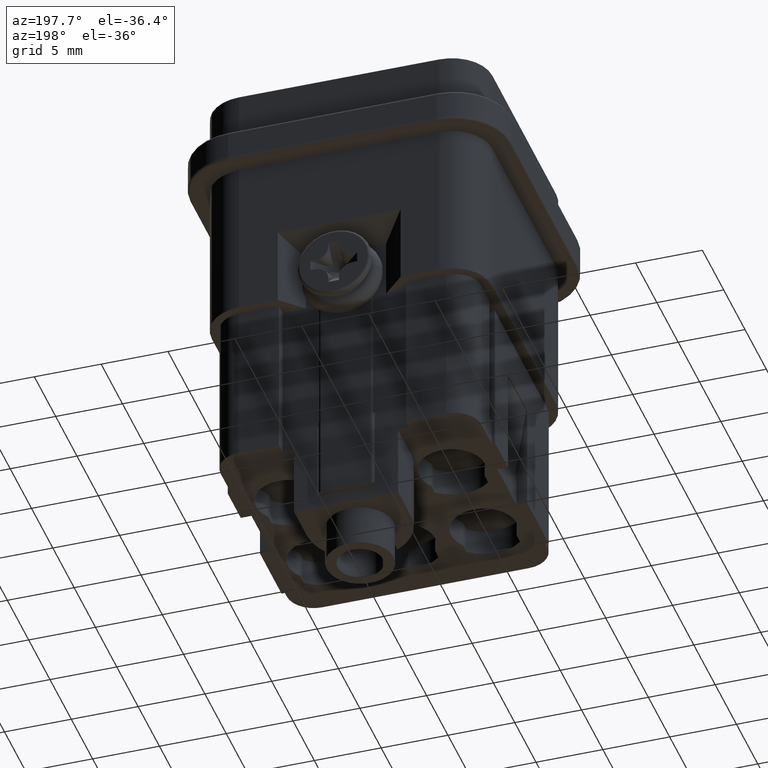
[diagram: clean part render]
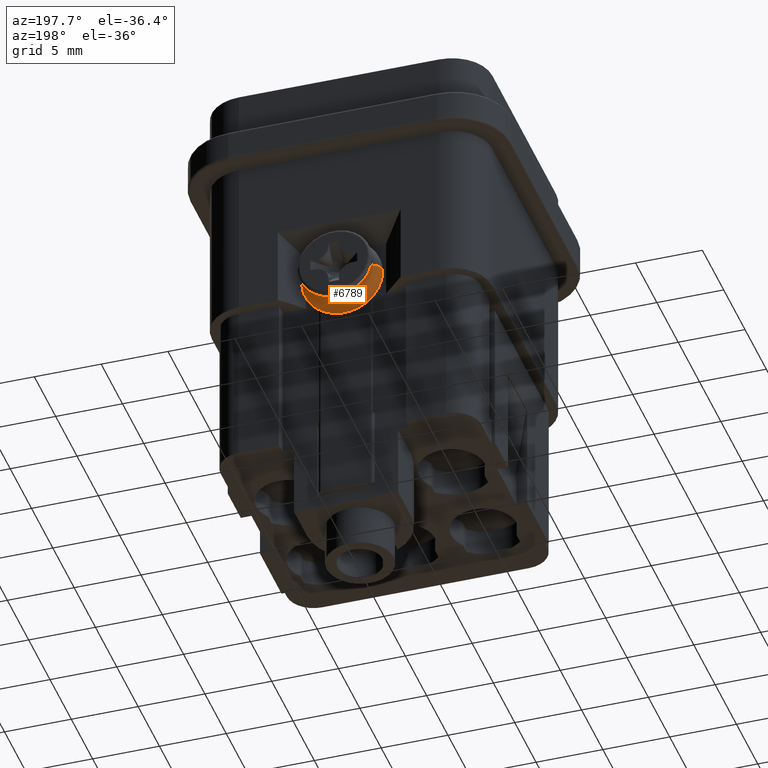
[diagram: same view with one face highlighted and labeled with its STEP entity id]
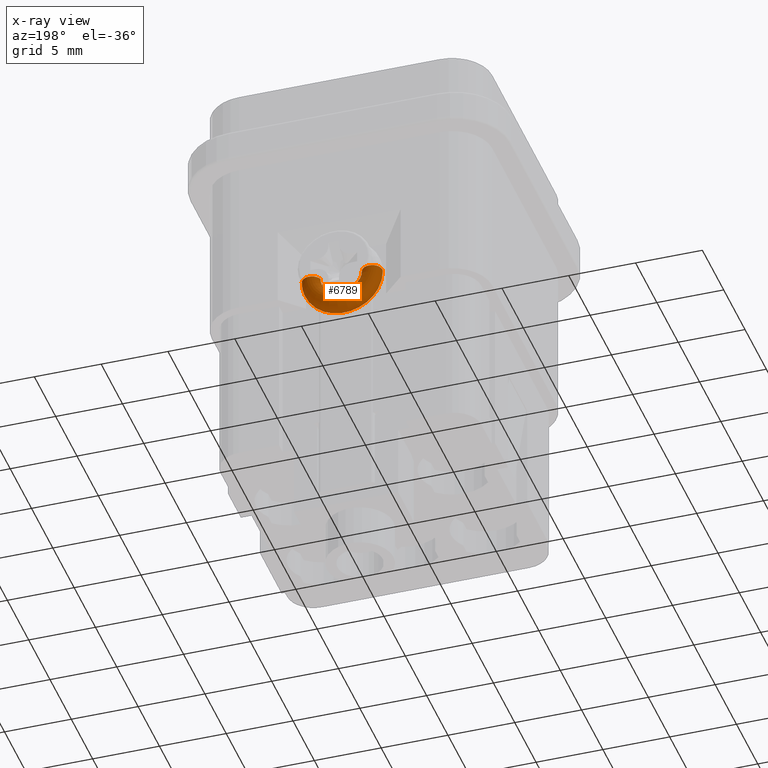
[diagram: x-ray of the same camera — body ghosted, the highlighted face saturated]
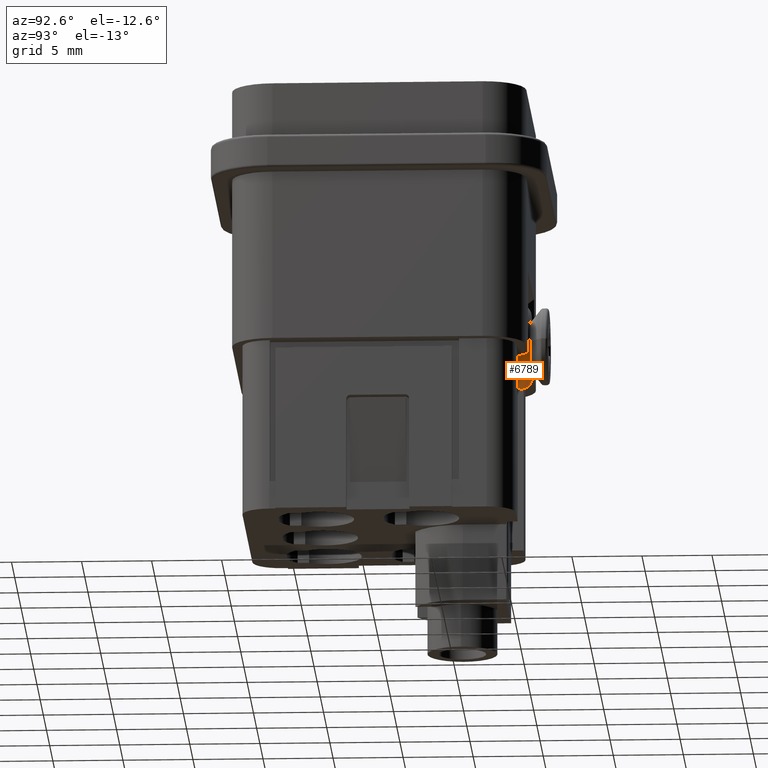
[diagram: same view with one face highlighted and labeled with its STEP entity id]
A machine part, auxiliary view. The second image highlights one B-rep face of the part: STEP entity #6789.
The next image is the same camera in x-ray: the body ghosted, the highlighted face saturated — about 0% of this face is hidden behind the body in this view.
A second angle (auxiliary view) of the same face is appended — the face is thin or edge-on in the first view.
In plain terms, the highlighted toroidal blend (fillet) surface has major radius 2.25 mm and minor (blend) radius 0.75 mm.
Its self-contained STEP definition (entity closure, byte-faithful):
#1947=CARTESIAN_POINT('',(-2.250084244088E0,9.795776605353E0,1.169934339754E1));
#1948=DIRECTION('',(2.894756675E-4,0.E0,-9.999999581019E-1));
#1949=DIRECTION('',(2.214737048736E-4,-9.999999754747E-1,6.411125173095E-8));
#1950=AXIS2_PLACEMENT_3D('',#1947,#1948,#1949);
#1988=CARTESIAN_POINT('',(2.249914794267E0,9.795776605353E0,1.169985371564E1));
#1989=DIRECTION('',(-6.266757964197E-5,0.E0,-9.999999980364E-1));
#1990=DIRECTION('',(-9.365701276860E-1,3.504802312276E-1,5.869258318256E-5));
#1991=AXIS2_PLACEMENT_3D('',#1988,#1989,#1990);
#1993=CARTESIAN_POINT('',(2.249914793989E0,9.795776605353E0,1.169984935299E1));
#1994=DIRECTION('',(-6.460653783072E-5,0.E0,-9.999999979130E-1));
#1995=DIRECTION('',(-2.214852722149E-4,9.999999754721E-1,1.430939628112E-8));
#1996=AXIS2_PLACEMENT_3D('',#1993,#1994,#1995);
#1998=CARTESIAN_POINT('',(2.249914793989E0,9.795776605353E0,1.169984935299E1));
#1999=DIRECTION('',(-6.460653783072E-5,0.E0,-9.999999979130E-1));
#2000=DIRECTION('',(-2.214737136907E-4,-9.999999754747E-1,1.430865022057E-8));
#2001=AXIS2_PLACEMENT_3D('',#1998,#1999,#2000);
#2039=CARTESIAN_POINT('',(-1.547478388515E0,1.005822949748E1,1.169977489427E1));
#2040=CARTESIAN_POINT('',(-1.547478388515E0,1.005827479528E1,1.164728285243E1));
#2041=CARTESIAN_POINT('',(-1.542125152860E0,1.005828704881E1,1.154274954761E1));
#2042=CARTESIAN_POINT('',(-1.518316559645E0,1.005830084244E1,1.138755756186E1));
#2043=CARTESIAN_POINT('',(-1.478920217986E0,1.005831716236E1,1.123557235268E1));
#2044=CARTESIAN_POINT('',(-1.424354568850E0,1.005833389704E1,1.108835135414E1));
#2045=CARTESIAN_POINT('',(-1.355175580215E0,1.005835139549E1,1.094740539419E1));
#2046=CARTESIAN_POINT('',(-1.272093987807E0,1.005836933850E1,1.081418031650E1));
#2047=CARTESIAN_POINT('',(-1.175961855671E0,1.005838757930E1,1.069004291877E1));
#2048=CARTESIAN_POINT('',(-1.067765482144E0,1.005840592067E1,1.057626672404E1));
#2049=CARTESIAN_POINT('',(-9.486148399659E-1,1.005842417714E1,
1.047401897091E1));
#2050=CARTESIAN_POINT('',(-8.197323072887E-1,1.005844216074E1,
1.038434862399E1));
#2051=CARTESIAN_POINT('',(-6.824400955531E-1,1.005845968725E1,
1.030817561643E1));
#2052=CARTESIAN_POINT('',(-5.381466933513E-1,1.005847657696E1,
1.024628141127E1));
#2053=CARTESIAN_POINT('',(-3.883324144018E-1,1.005849265676E1,
1.019930098463E1));
#2054=CARTESIAN_POINT('',(-2.345342115512E-1,1.005850776190E1,
1.016771631136E1));
#2055=CARTESIAN_POINT('',(-7.832990893536E-2,1.005852173762E1,
1.015185142048E1));
#2056=CARTESIAN_POINT('',(7.867798495385E-2,1.005853444077E1,1.015186907090E1));
#2057=CARTESIAN_POINT('',(2.348787175006E-1,1.005854574128E1,1.016776908168E1));
#2058=CARTESIAN_POINT('',(3.886698167610E-1,1.005855552342E1,1.019938833386E1));
#2059=CARTESIAN_POINT('',(5.384735313186E-1,1.005856368708E1,1.024640244389E1));
#2060=CARTESIAN_POINT('',(6.827530165202E-1,1.005857014858E1,1.030832909152E1));
#2061=CARTESIAN_POINT('',(8.200281010955E-1,1.005857484224E1,1.038453296789E1));
#2062=CARTESIAN_POINT('',(9.488904721927E-1,1.005857771832E1,1.047423229331E1));
#2063=CARTESIAN_POINT('',(1.068018123851E0,1.005857875373E1,1.057650683723E1));
#2064=CARTESIAN_POINT('',(1.176188917672E0,1.005857791419E1,1.069030736010E1));
#2065=CARTESIAN_POINT('',(1.272293127799E0,1.005857529670E1,1.081446637349E1));
#2066=CARTESIAN_POINT('',(1.355344799609E0,1.005857059809E1,1.094771013248E1));
#2067=CARTESIAN_POINT('',(1.424491961892E0,1.005856509787E1,1.108867164699E1));
#2068=CARTESIAN_POINT('',(1.479025004497E0,1.005855425659E1,1.123590491527E1));
#2069=CARTESIAN_POINT('',(1.518385312125E0,1.005855533681E1,1.138789897667E1));
#2070=CARTESIAN_POINT('',(1.542165942510E0,1.005850431685E1,1.154309633079E1));
#2071=CARTESIAN_POINT('',(1.547478419564E0,1.005859517891E1,1.164763079379E1));
#2072=CARTESIAN_POINT('',(1.547478419564E0,1.005858153260E1,1.169994886862E1));
#2074=CARTESIAN_POINT('',(-2.250032139668E0,9.795776605842E0,1.169932326998E1));
#2075=DIRECTION('',(-3.224234633220E-4,3.227963676043E-10,9.999999480216E-1));
#2076=DIRECTION('',(9.367500876444E-1,3.499988315351E-1,3.020301102470E-4));
#2077=AXIS2_PLACEMENT_3D('',#2074,#2075,#2076);
#2079=CARTESIAN_POINT('',(-2.250032145045E0,9.795776605842E0,1.169934014482E1));
#2080=DIRECTION('',(-3.149234864445E-4,3.227958449379E-10,9.999999504116E-1));
#2081=DIRECTION('',(-4.106760508872E-5,-9.999999991567E-1,-1.261035850948E-8));
#2082=AXIS2_PLACEMENT_3D('',#2079,#2080,#2081);
#2084=CARTESIAN_POINT('',(-1.547478388515E0,9.533323713714E0,1.169977489501E1));
#2085=CARTESIAN_POINT('',(-1.547478388515E0,9.533278415999E0,1.164728285389E1));
#2086=CARTESIAN_POINT('',(-1.542125153031E0,9.533266162894E0,1.154274954905E1));
#2087=CARTESIAN_POINT('',(-1.518316559926E0,9.533252368896E0,1.138755756324E1));
#2088=CARTESIAN_POINT('',(-1.478920218404E0,9.533236048890E0,1.123557235400E1));
#2089=CARTESIAN_POINT('',(-1.424354569386E0,9.533219314047E0,1.108835135539E1));
#2090=CARTESIAN_POINT('',(-1.355175580861E0,9.533201815449E0,1.094740539535E1));
#2091=CARTESIAN_POINT('',(-1.272093988549E0,9.533183872293E0,1.081418031756E1));
#2092=CARTESIAN_POINT('',(-1.175961856497E0,9.533165631363E0,1.069004291973E1));
#2093=CARTESIAN_POINT('',(-1.067765483042E0,9.533147289860E0,1.057626672489E1));
#2094=CARTESIAN_POINT('',(-9.486148409216E-1,9.533129033270E0,
1.047401897165E1));
#2095=CARTESIAN_POINT('',(-8.197323082888E-1,9.533111049561E0,
1.038434862461E1));
#2096=CARTESIAN_POINT('',(-6.824400965840E-1,9.533093522948E0,
1.030817561694E1));
#2097=CARTESIAN_POINT('',(-5.381466943997E-1,9.533076633156E0,
1.024628141166E1));
#2098=CARTESIAN_POINT('',(-3.883324154550E-1,9.533060553278E0,
1.019930098490E1));
#2099=CARTESIAN_POINT('',(-2.345342125967E-1,9.533045448083E0,
1.016771631152E1));
#2100=CARTESIAN_POINT('',(-7.832990996162E-2,9.533031472318E0,
1.015185142053E1));
#2101=CARTESIAN_POINT('',(7.867798395772E-2,9.533018769130E0,1.015186907085E1));
#2102=CARTESIAN_POINT('',(2.348787165445E-1,9.533007468608E0,1.016776908153E1));
#2103=CARTESIAN_POINT('',(3.886698158538E-1,9.532997686465E0,1.019938833362E1));
#2104=CARTESIAN_POINT('',(5.384735304682E-1,9.532989522814E0,1.024640244357E1));
#2105=CARTESIAN_POINT('',(6.827530157331E-1,9.532983061342E0,1.030832909113E1));
#2106=CARTESIAN_POINT('',(8.200281003771E-1,9.532978367727E0,1.038453296744E1));
#2107=CARTESIAN_POINT('',(9.488904715472E-1,9.532975491708E0,1.047423229280E1));
#2108=CARTESIAN_POINT('',(1.068018123281E0,9.532974456369E0,1.057650683669E1));
#2109=CARTESIAN_POINT('',(1.176188917180E0,9.532975295995E0,1.069030735953E1));
#2110=CARTESIAN_POINT('',(1.272293127384E0,9.532977913582E0,1.081446637289E1));
#2111=CARTESIAN_POINT('',(1.355344799272E0,9.532982612302E0,1.094771013187E1));
#2112=CARTESIAN_POINT('',(1.424491961630E0,9.532988112635E0,1.108867164637E1));
#2113=CARTESIAN_POINT('',(1.479025004306E0,9.532998954055E0,1.123590491466E1));
#2114=CARTESIAN_POINT('',(1.518385312006E0,9.532997873934E0,1.138789897608E1));
#2115=CARTESIAN_POINT('',(1.542165942444E0,9.533048894167E0,1.154309633022E1));
#2116=CARTESIAN_POINT('',(1.547478419564E0,9.532958031874E0,1.164763079323E1));
#2117=CARTESIAN_POINT('',(1.547478419564E0,9.532971678284E0,1.169994886835E1));
#4108=VERTEX_POINT('',#2084);
#4109=VERTEX_POINT('',#2117);
#4110=VERTEX_POINT('',#2039);
#4111=VERTEX_POINT('',#2072);
#4112=CARTESIAN_POINT('',(2.249748678232E0,1.054578596226E1,1.169985372605E1));
#4113=VERTEX_POINT('',#4112);
#4114=CARTESIAN_POINT('',(2.249748686628E0,9.045767248440E0,1.169984936372E1));
#4115=VERTEX_POINT('',#4114);
#4116=CARTESIAN_POINT('',(-2.250062931046E0,1.054576723042E1,1.169932325981E1));
#4117=VERTEX_POINT('',#4116);
#4118=CARTESIAN_POINT('',(-2.250062945364E0,9.045785981266E0,1.169934013536E1));
#4119=VERTEX_POINT('',#4118);
#6773=CARTESIAN_POINT('',(-4.683874952022E-5,9.795776605685E0,
1.170004871807E1));
#6774=DIRECTION('',(-6.979191840403E-11,-1.E0,3.227738818295E-10));
#6775=DIRECTION('',(9.999999960743E-1,-6.982051839346E-11,-8.860773755835E-5));
#6776=AXIS2_PLACEMENT_3D('',#6773,#6774,#6775);
#6777=TOROIDAL_SURFACE('',#6776,2.249985417869E0,7.499906252085E-1);
#6778=ORIENTED_EDGE('',*,*,#6763,.F.);
#6779=ORIENTED_EDGE('',*,*,#6761,.F.);
#6781=ORIENTED_EDGE('',*,*,#6780,.F.);
#6782=ORIENTED_EDGE('',*,*,#6757,.T.);
#6783=ORIENTED_EDGE('',*,*,#6755,.F.);
#6784=ORIENTED_EDGE('',*,*,#6768,.T.);
#6785=ORIENTED_EDGE('',*,*,#6730,.T.);
#6786=ORIENTED_EDGE('',*,*,#6765,.F.);
#6787=EDGE_LOOP('',(#6778,#6779,#6781,#6782,#6783,#6784,#6785,#6786));
#6788=FACE_OUTER_BOUND('',#6787,.F.);
#6789=ADVANCED_FACE('',(#6788),#6777,.T.);
#1951=CIRCLE('',#1950,7.500093753072E-1);
#1992=CIRCLE('',#1991,7.500093753072E-1);
#1997=CIRCLE('',#1996,7.500093753072E-1);
#2002=CIRCLE('',#2001,7.500093753072E-1);
#2073=B_SPLINE_CURVE_WITH_KNOTS('',3,(#2039,#2040,#2041,#2042,#2043,#2044,#2045,
#2046,#2047,#2048,#2049,#2050,#2051,#2052,#2053,#2054,#2055,#2056,#2057,#2058,
#2059,#2060,#2061,#2062,#2063,#2064,#2065,#2066,#2067,#2068,#2069,#2070,#2071,
#2072),.UNSPECIFIED.,.F.,.F.,(4,1,1,1,1,1,1,1,1,1,1,1,1,1,1,1,1,1,1,1,1,1,1,1,1,
1,1,1,1,1,1,4),(0.E0,3.225806451613E-2,6.451612903226E-2,9.677419354839E-2,
1.290322580645E-1,1.612903225806E-1,1.935483870968E-1,2.258064516129E-1,
2.580645161290E-1,2.903225806452E-1,3.225806451613E-1,3.548387096774E-1,
3.870967741935E-1,4.193548387097E-1,4.516129032258E-1,4.838709677419E-1,
5.161290322581E-1,5.483870967742E-1,5.806451612903E-1,6.129032258065E-1,
6.451612903226E-1,6.774193548387E-1,7.096774193548E-1,7.419354838710E-1,
7.741935483871E-1,8.064516129032E-1,8.387096774194E-1,8.709677419355E-1,
9.032258064516E-1,9.354838709677E-1,9.677419354839E-1,1.E0),.UNSPECIFIED.);
#2078=CIRCLE('',#2077,7.499906252085E-1);
#2083=CIRCLE('',#2082,7.499906252085E-1);
#2118=B_SPLINE_CURVE_WITH_KNOTS('',3,(#2084,#2085,#2086,#2087,#2088,#2089,#2090,
#2091,#2092,#2093,#2094,#2095,#2096,#2097,#2098,#2099,#2100,#2101,#2102,#2103,
#2104,#2105,#2106,#2107,#2108,#2109,#2110,#2111,#2112,#2113,#2114,#2115,#2116,
#2117),.UNSPECIFIED.,.F.,.F.,(4,1,1,1,1,1,1,1,1,1,1,1,1,1,1,1,1,1,1,1,1,1,1,1,1,
1,1,1,1,1,1,4),(0.E0,3.225806451613E-2,6.451612903226E-2,9.677419354839E-2,
1.290322580645E-1,1.612903225806E-1,1.935483870968E-1,2.258064516129E-1,
2.580645161290E-1,2.903225806452E-1,3.225806451613E-1,3.548387096774E-1,
3.870967741935E-1,4.193548387097E-1,4.516129032258E-1,4.838709677419E-1,
5.161290322581E-1,5.483870967742E-1,5.806451612903E-1,6.129032258065E-1,
6.451612903226E-1,6.774193548387E-1,7.096774193548E-1,7.419354838710E-1,
7.741935483871E-1,8.064516129032E-1,8.387096774194E-1,8.709677419355E-1,
9.032258064516E-1,9.354838709677E-1,9.677419354839E-1,1.E0),.UNSPECIFIED.);
#6730=EDGE_CURVE('',#4108,#4109,#2118,.T.);
#6755=EDGE_CURVE('',#4119,#4117,#1951,.T.);
#6757=EDGE_CURVE('',#4110,#4117,#2078,.T.);
#6761=EDGE_CURVE('',#4111,#4113,#1992,.T.);
#6763=EDGE_CURVE('',#4113,#4115,#1997,.T.);
#6765=EDGE_CURVE('',#4115,#4109,#2002,.T.);
#6768=EDGE_CURVE('',#4119,#4108,#2083,.T.);
#6780=EDGE_CURVE('',#4110,#4111,#2073,.T.);